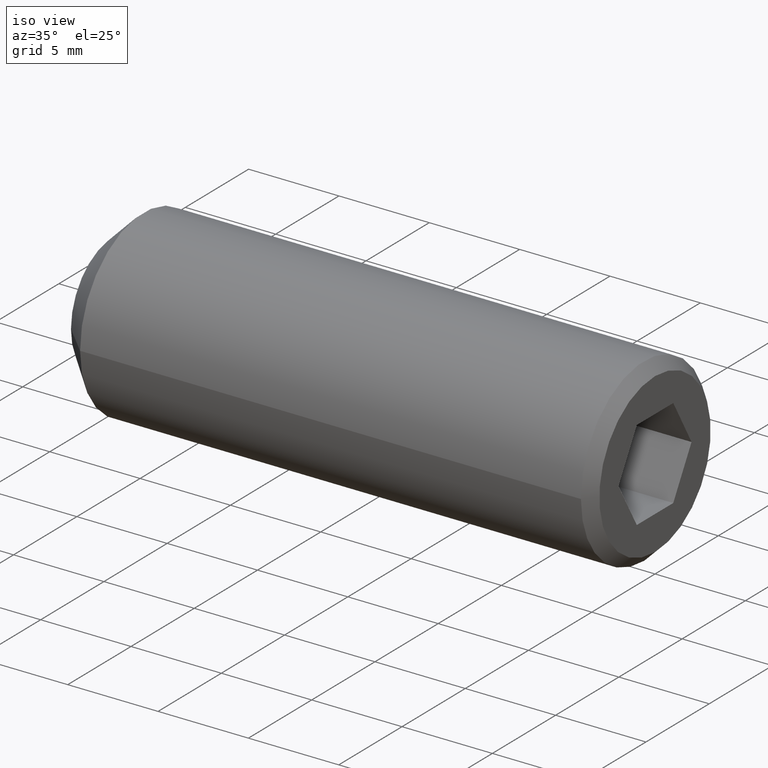
[diagram: clean part render]
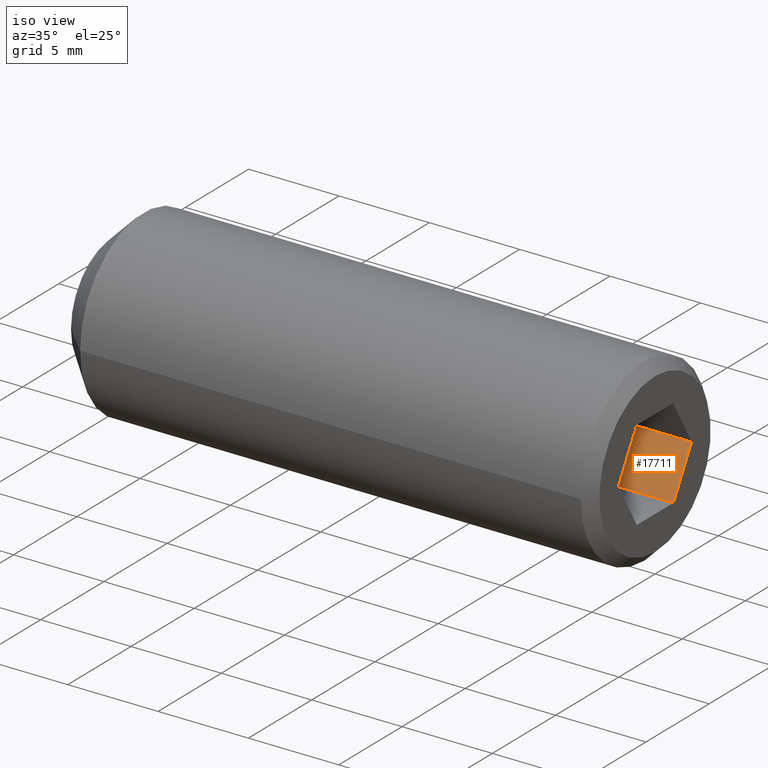
[diagram: same view with one face highlighted and labeled with its STEP entity id]
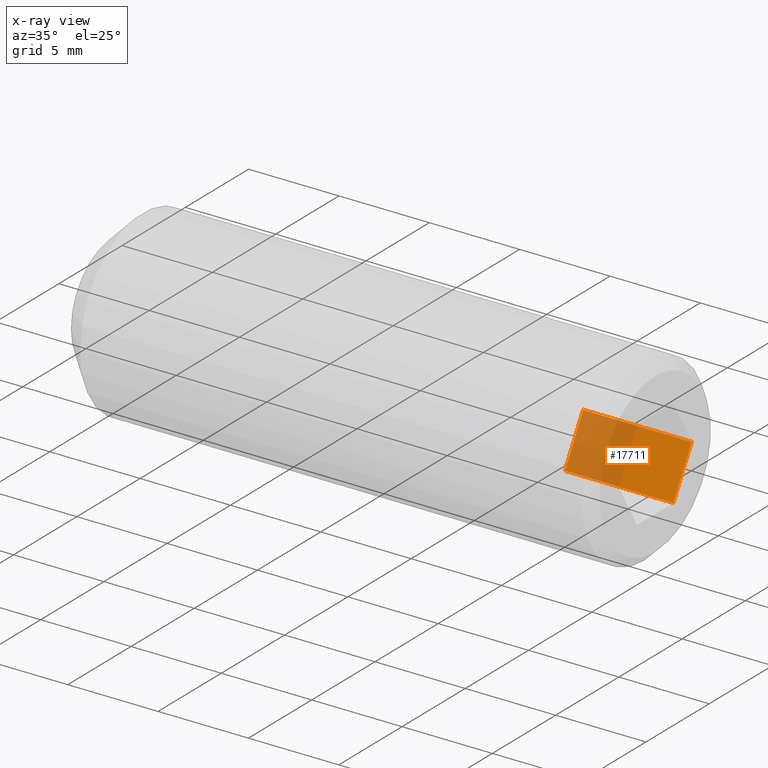
[diagram: x-ray of the same camera — body ghosted, the highlighted face saturated]
A machine part, iso view. The second image highlights one B-rep face of the part: STEP entity #17711.
The next image is the same camera in x-ray: the body ghosted, the highlighted face saturated — about 49% of this face is hidden behind the body in this view.
In plain terms, the highlighted planar face has unit normal (0, 0.866, -0.5).
Its self-contained STEP definition (entity closure, byte-faithful):
#382 = VECTOR ( 'NONE', #14637, 1000.000000000000000 ) ;
#619 = DIRECTION ( 'NONE',  ( 1.000000000000000000, -0.0000000000000000000, 6.123031769111886300E-017 ) ) ;
#705 = CARTESIAN_POINT ( 'NONE',  ( 24.00000000000000000, 1.443375672974062100, -2.500000000000000000 ) ) ;
#738 = LINE ( 'NONE', #4689, #14466 ) ;
#2655 = EDGE_CURVE ( 'NONE', #13040, #16828, #2778, .T. ) ;
#2778 = LINE ( 'NONE', #705, #382 ) ;
#3135 = VERTEX_POINT ( 'NONE', #13331 ) ;
#3700 = ORIENTED_EDGE ( 'NONE', *, *, #2655, .F. ) ;
#3979 = VECTOR ( 'NONE', #17217, 1000.000000000000000 ) ;
#4689 = CARTESIAN_POINT ( 'NONE',  ( 30.00000000000000000, 1.443375672974062100, -2.499999999999999600 ) ) ;
#4890 = CARTESIAN_POINT ( 'NONE',  ( 24.00000000000000000, 2.886751345948125100, -1.001915959150930300E-015 ) ) ;
#5302 = ORIENTED_EDGE ( 'NONE', *, *, #17522, .T. ) ;
#5413 = DIRECTION ( 'NONE',  ( 0.0000000000000000000, 0.4999999999999997200, 0.8660254037844388200 ) ) ;
#5424 = EDGE_LOOP ( 'NONE', ( #5302, #15400, #3700, #10089, #11443 ) ) ;
#6141 = DIRECTION ( 'NONE',  ( 0.0000000000000000000, 0.4999999999999997200, 0.8660254037844388200 ) ) ;
#6630 = CARTESIAN_POINT ( 'NONE',  ( 24.00000000000000000, 1.443375672974062100, -2.500000000000000000 ) ) ;
#7594 = CARTESIAN_POINT ( 'NONE',  ( 24.00000000000000000, 1.443375672974062100, -2.500000000000000000 ) ) ;
#8077 = PLANE ( 'NONE',  #12728 ) ;
#8724 = VECTOR ( 'NONE', #619, 1000.000000000000000 ) ;
#9101 = EDGE_CURVE ( 'NONE', #16828, #10122, #12448, .T. ) ;
#9118 = EDGE_CURVE ( 'NONE', #10326, #3135, #13322, .T. ) ;
#10089 = ORIENTED_EDGE ( 'NONE', *, *, #13113, .F. ) ;
#10122 = VERTEX_POINT ( 'NONE', #14086 ) ;
#10326 = VERTEX_POINT ( 'NONE', #13028 ) ;
#11160 = FACE_OUTER_BOUND ( 'NONE', #5424, .T. ) ;
#11443 = ORIENTED_EDGE ( 'NONE', *, *, #9118, .T. ) ;
#11608 = CARTESIAN_POINT ( 'NONE',  ( 24.00000000000000000, 2.886751345948125100, -1.001915959150930300E-015 ) ) ;
#12446 = CARTESIAN_POINT ( 'NONE',  ( 24.00000000000000000, 2.165063509461098600, -1.249999999999998700 ) ) ;
#12448 = LINE ( 'NONE', #11608, #3979 ) ;
#12728 = AXIS2_PLACEMENT_3D ( 'NONE', #6630, #15101, #5413 ) ;
#13028 = CARTESIAN_POINT ( 'NONE',  ( 24.00000000000000000, 1.443375672974062100, -2.500000000000000000 ) ) ;
#13040 = VERTEX_POINT ( 'NONE', #12446 ) ;
#13113 = EDGE_CURVE ( 'NONE', #10326, #13040, #16024, .T. ) ;
#13322 = LINE ( 'NONE', #7594, #8724 ) ;
#13331 = CARTESIAN_POINT ( 'NONE',  ( 30.00000000000000000, 1.443375672974062100, -2.499999999999999600 ) ) ;
#14086 = CARTESIAN_POINT ( 'NONE',  ( 30.00000000000000000, 2.886751345948125100, -6.345340530042170500E-016 ) ) ;
#14457 = CARTESIAN_POINT ( 'NONE',  ( 24.00000000000000000, 1.443375672974062100, -2.500000000000000000 ) ) ;
#14466 = VECTOR ( 'NONE', #6141, 1000.000000000000000 ) ;
#14637 = DIRECTION ( 'NONE',  ( 0.0000000000000000000, 0.4999999999999997200, 0.8660254037844388200 ) ) ;
#15101 = DIRECTION ( 'NONE',  ( 3.061515884555941900E-017, 0.8660254037844388200, -0.4999999999999997200 ) ) ;
#15400 = ORIENTED_EDGE ( 'NONE', *, *, #9101, .F. ) ;
#15593 = VECTOR ( 'NONE', #17370, 1000.000000000000000 ) ;
#16024 = LINE ( 'NONE', #14457, #15593 ) ;
#16828 = VERTEX_POINT ( 'NONE', #4890 ) ;
#17217 = DIRECTION ( 'NONE',  ( 1.000000000000000000, -0.0000000000000000000, 6.123031769111886300E-017 ) ) ;
#17370 = DIRECTION ( 'NONE',  ( 0.0000000000000000000, 0.4999999999999997200, 0.8660254037844388200 ) ) ;
#17522 = EDGE_CURVE ( 'NONE', #3135, #10122, #738, .T. ) ;
#17711 = ADVANCED_FACE ( 'NONE', ( #11160 ), #8077, .F. ) ;